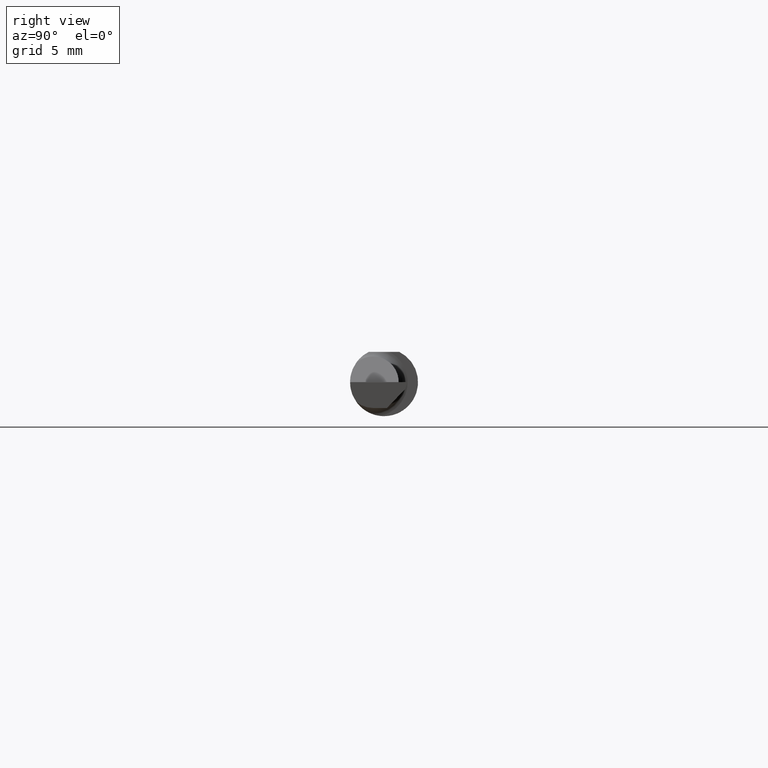
[diagram: clean part render]
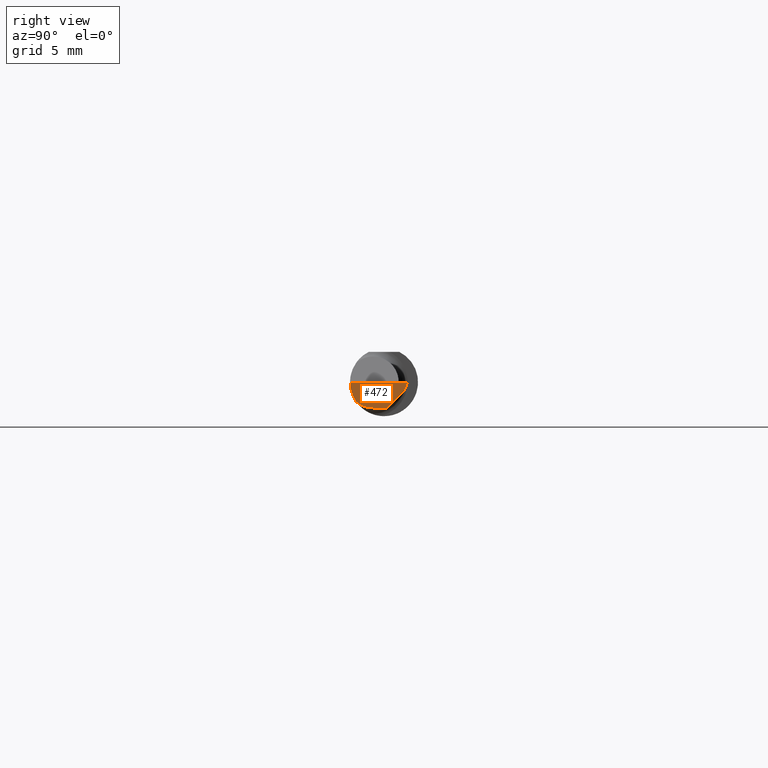
[diagram: same view with one face highlighted and labeled with its STEP entity id]
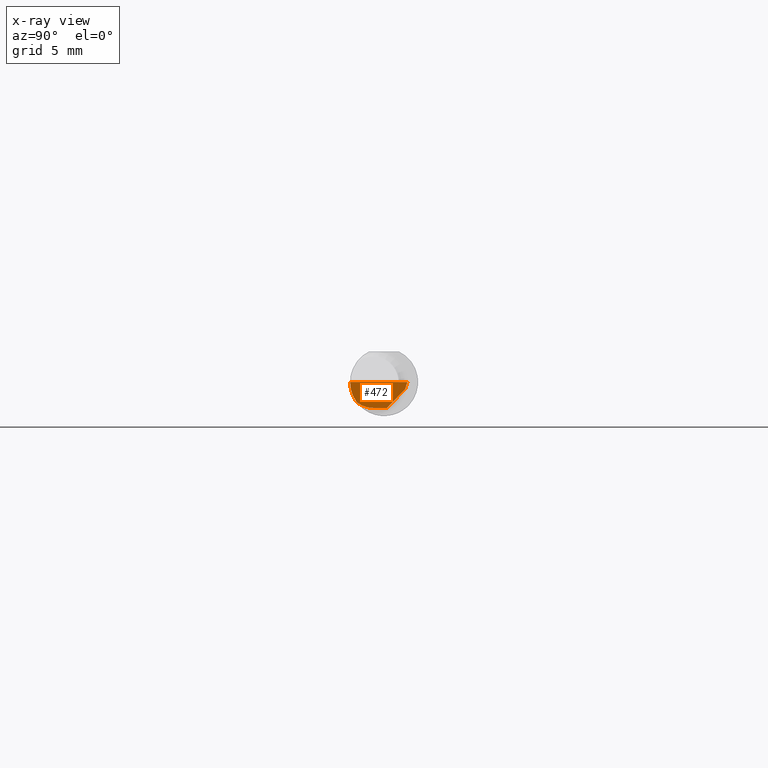
[diagram: x-ray of the same camera — body ghosted, the highlighted face saturated]
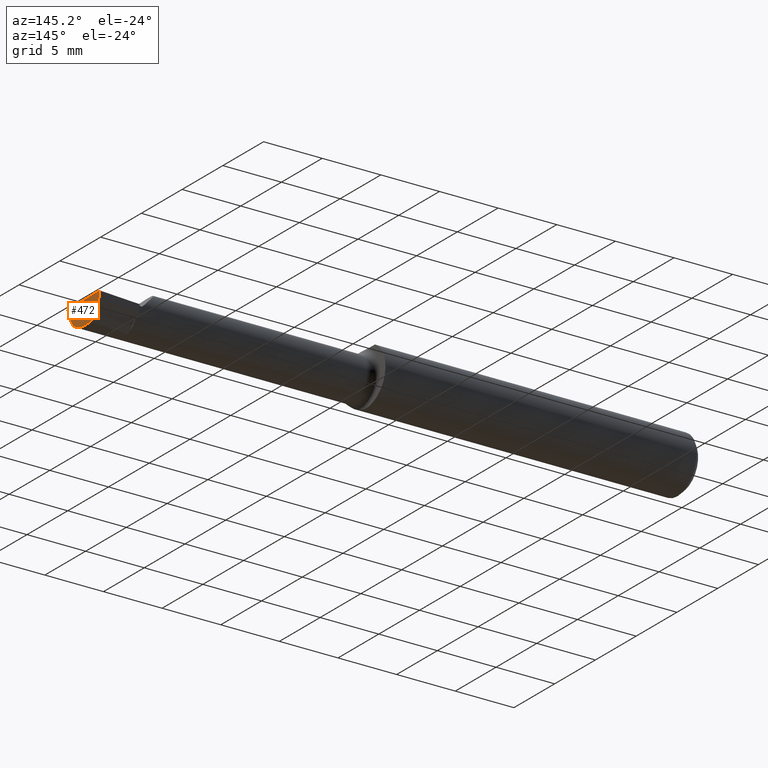
[diagram: same view with one face highlighted and labeled with its STEP entity id]
A machine part, right view. The second image highlights one B-rep face of the part: STEP entity #472.
The next image is the same camera in x-ray: the body ghosted, the highlighted face saturated — about 0% of this face is hidden behind the body in this view.
A second angle (auxiliary view) of the same face is appended — the face is thin or edge-on in the first view.
In plain terms, the highlighted planar face has unit normal (0.9922, -0.026, -0.1219).
Its self-contained STEP definition (entity closure, byte-faithful):
#5 = ORIENTED_EDGE ( 'NONE', *, *, #332, .T. ) ;
#14 = DIRECTION ( 'NONE',  ( -0.02617694830786939167, -0.9996573249755573709, 1.459184416195897376E-17 ) ) ;
#26 = VERTEX_POINT ( 'NONE', #338 ) ;
#33 = ORIENTED_EDGE ( 'NONE', *, *, #230, .T. ) ;
#37 = CARTESIAN_POINT ( 'NONE',  ( 1.995862624392068074, -0.09360000000000009979, -6.605666309584466665E-17 ) ) ;
#38 = ORIENTED_EDGE ( 'NONE', *, *, #100, .T. ) ;
#41 = PLANE ( 'NONE',  #289 ) ;
#42 = EDGE_LOOP ( 'NONE', ( #5, #435, #538, #376, #33, #38 ) ) ;
#44 = CARTESIAN_POINT ( 'NONE',  ( 2.000000000000004441, 0.06440000000001341873, 4.273634705088531894E-14 ) ) ;
#53 = CARTESIAN_POINT ( 'NONE',  ( 1.991772787678609324, -0.2497845628634190740, -6.377686106282058433E-17 ) ) ;
#54 = VECTOR ( 'NONE', #136, 39.37007874015748143 ) ;
#58 = VECTOR ( 'NONE', #458, 39.37007874015748143 ) ;
#77 = CARTESIAN_POINT ( 'NONE',  ( 1.989625015145392917, -0.07608366013071823919, -0.05451822320209416539 ) ) ;
#100 = EDGE_CURVE ( 'NONE', #614, #186, #102, .T. ) ;
#102 = LINE ( 'NONE', #53, #595 ) ;
#111 = CARTESIAN_POINT ( 'NONE',  ( 1.989625015145392917, -0.07608366013071823919, -0.05451822320209416539 ) ) ;
#114 = CARTESIAN_POINT ( 'NONE',  ( 1.988351831874612508, -0.04739579569646898416, -0.07100000000000017408 ) ) ;
#136 = DIRECTION ( 'NONE',  ( 0.1053106618241779063, 0.6976485211320171409, 0.7086580314005218595 ) ) ;
#147 = VERTEX_POINT ( 'NONE', #360 ) ;
#167 = CARTESIAN_POINT ( 'NONE',  ( 1.989254605881537685, 0.03820997996013973663, -0.08190066459133928112 ) ) ;
#178 = VECTOR ( 'NONE', #364, 39.37007874015748854 ) ;
#186 = VERTEX_POINT ( 'NONE', #308 ) ;
#230 = EDGE_CURVE ( 'NONE', #147, #614, #233, .T. ) ;
#233 = LINE ( 'NONE', #167, #178 ) ;
#235 = DIRECTION ( 'NONE',  ( 0.9922060308645480609, -0.02598182930468958748, -0.1218693434051461438 ) ) ;
#259 = EDGE_CURVE ( 'NONE', #600, #524, #592, .T. ) ;
#266 = CARTESIAN_POINT ( 'NONE',  ( 1.988799325593724632, -0.03030670001847553252, -0.07100000000000021572 ) ) ;
#275 = CARTESIAN_POINT ( 'NONE',  ( 1.988791645263412011, -0.03060000000000022424, -0.07100000000000021572 ) ) ;
#286 = CARTESIAN_POINT ( 'NONE',  ( 2.075578470192265268, -0.1475581462076027695, 0.6605145482336969298 ) ) ;
#289 = AXIS2_PLACEMENT_3D ( 'NONE', #286, #235, #622 ) ;
#308 = CARTESIAN_POINT ( 'NONE',  ( 1.995862624392068074, -0.09360000000000009979, -6.605666309584466665E-17 ) ) ;
#312 =( BOUNDED_CURVE ( )  B_SPLINE_CURVE ( 3, ( #37, #426, #555, #77 ),
 .UNSPECIFIED., .F., .F. ) 
 B_SPLINE_CURVE_WITH_KNOTS ( ( 4, 4 ),
 ( 4.922438424664829171, 5.544189768309970567 ),
 .UNSPECIFIED. ) 
 CURVE ( )  GEOMETRIC_REPRESENTATION_ITEM ( )  RATIONAL_B_SPLINE_CURVE ( ( 1.000000000000000000, 0.9680440490283178656, 0.9680440490283178656, 1.000000000000000000 ) ) 
 REPRESENTATION_ITEM ( '' )  );
#332 = EDGE_CURVE ( 'NONE', #186, #524, #312, .T. ) ;
#338 = CARTESIAN_POINT ( 'NONE',  ( 1.989797099917948842, 0.007796764149783521822, -0.07100000000000021572 ) ) ;
#355 = EDGE_CURVE ( 'NONE', #26, #147, #494, .T. ) ;
#360 = CARTESIAN_POINT ( 'NONE',  ( 1.997375993425186458, 0.05800444260848394012, -0.01999999999999999001 ) ) ;
#364 = DIRECTION ( 'NONE',  ( 0.1240019227989323375, 0.3022330132596648400, 0.9451342385281314984 ) ) ;
#376 = ORIENTED_EDGE ( 'NONE', *, *, #355, .T. ) ;
#426 = CARTESIAN_POINT ( 'NONE',  ( 1.993440754331651910, -0.09359999999999998876, -0.01971778966533907149 ) ) ;
#435 = ORIENTED_EDGE ( 'NONE', *, *, #259, .F. ) ;
#451 = CARTESIAN_POINT ( 'NONE',  ( 1.988791645263412011, -0.03060000000000022424, -0.07100000000000021572 ) ) ;
#458 = DIRECTION ( 'NONE',  ( 0.02617694830786939167, 0.9996573249755573709, -4.246274422243602914E-17 ) ) ;
#463 = CARTESIAN_POINT ( 'NONE',  ( 1.988641161029047755, -0.06318680184005832923, -0.06527786071030766690 ) ) ;
#472 = ADVANCED_FACE ( 'NONE', ( #576 ), #41, .T. ) ;
#494 = LINE ( 'NONE', #580, #54 ) ;
#515 = CARTESIAN_POINT ( 'NONE',  ( 1.989625015145392917, -0.07608366013071823919, -0.05451822320209416539 ) ) ;
#524 = VERTEX_POINT ( 'NONE', #111 ) ;
#538 = ORIENTED_EDGE ( 'NONE', *, *, #584, .T. ) ;
#555 = CARTESIAN_POINT ( 'NONE',  ( 1.991292915001084296, -0.08756847698997996532, -0.03849042825095482651 ) ) ;
#576 = FACE_OUTER_BOUND ( 'NONE', #42, .T. ) ;
#580 = CARTESIAN_POINT ( 'NONE',  ( 1.987153287650113009, -0.009717623157798458214, -0.08879077981909574979 ) ) ;
#584 = EDGE_CURVE ( 'NONE', #600, #26, #594, .T. ) ;
#592 =( BOUNDED_CURVE ( )  B_SPLINE_CURVE ( 3, ( #275, #114, #463, #515 ),
 .UNSPECIFIED., .F., .T. ) 
 B_SPLINE_CURVE_WITH_KNOTS ( ( 4, 4 ),
 ( 6.073135862899447623, 6.768434696801360673 ),
 .UNSPECIFIED. ) 
 CURVE ( )  GEOMETRIC_REPRESENTATION_ITEM ( )  RATIONAL_B_SPLINE_CURVE ( ( 1.000000000000000000, 0.9601174178332940734, 0.9601174178332940734, 1.000000000000000000 ) ) 
 REPRESENTATION_ITEM ( '' )  );
#594 = LINE ( 'NONE', #266, #58 ) ;
#595 = VECTOR ( 'NONE', #14, 39.37007874015748143 ) ;
#600 = VERTEX_POINT ( 'NONE', #451 ) ;
#614 = VERTEX_POINT ( 'NONE', #44 ) ;
#622 = DIRECTION ( 'NONE',  ( -0.1219104985252815604, 0.000000000000000000, -0.9925410975618679243 ) ) ;